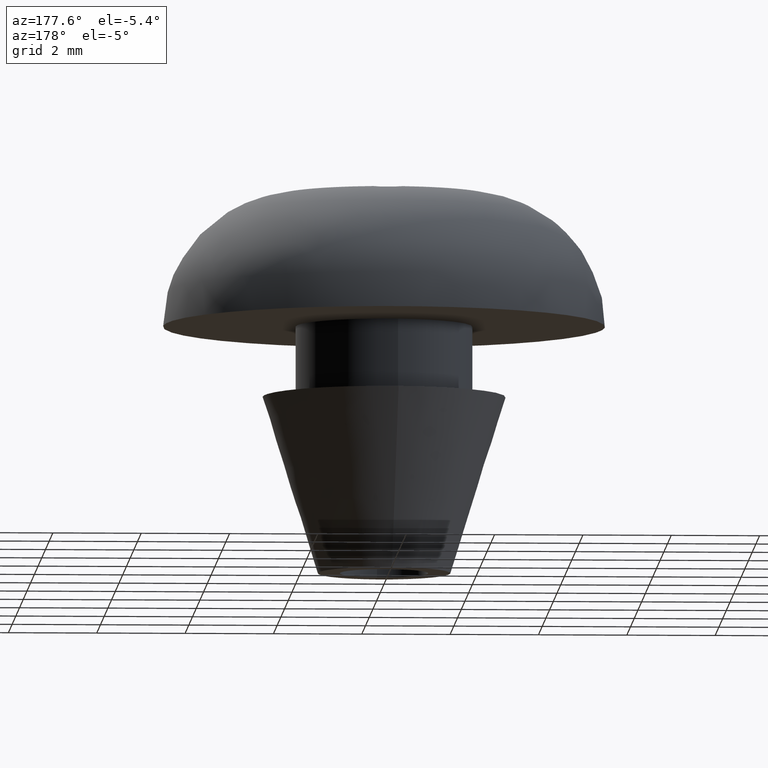
[diagram: clean part render]
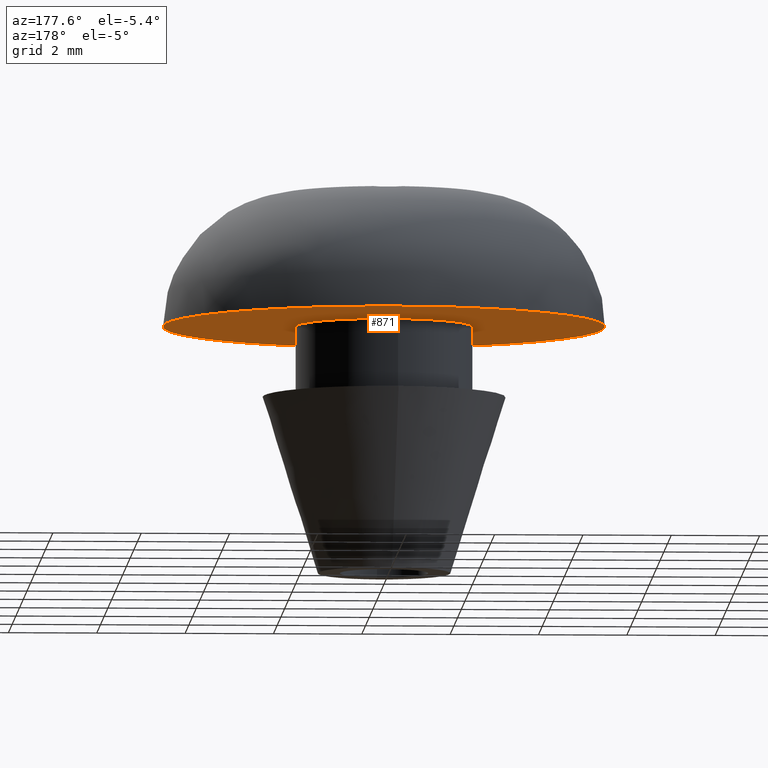
[diagram: same view with one face highlighted and labeled with its STEP entity id]
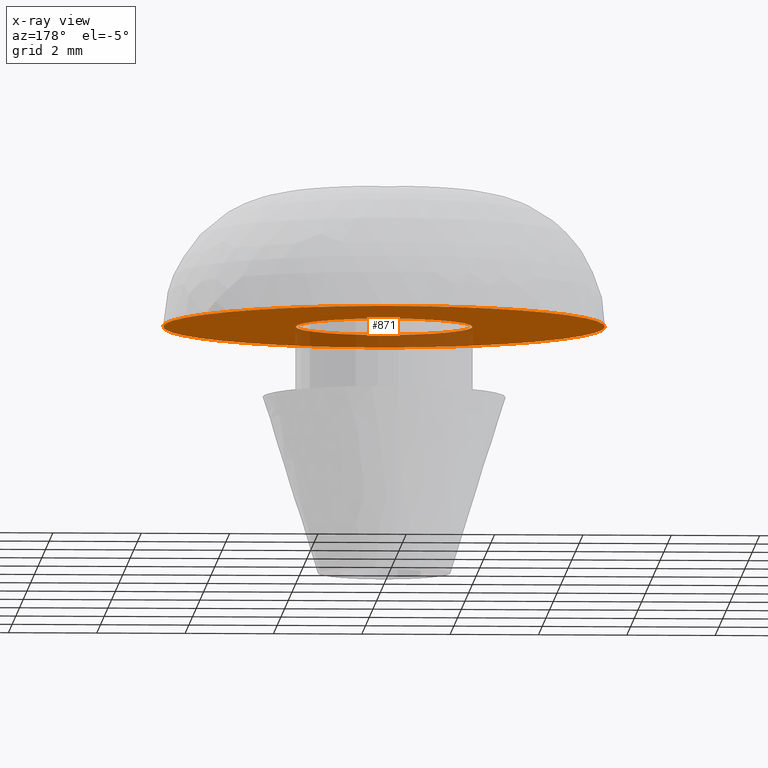
[diagram: x-ray of the same camera — body ghosted, the highlighted face saturated]
A machine part, auxiliary view. The second image highlights one B-rep face of the part: STEP entity #871.
The next image is the same camera in x-ray: the body ghosted, the highlighted face saturated — about 20% of this face is hidden behind the body in this view.
In plain terms, the highlighted face is a freeform B-spline surface patch.
Its self-contained STEP definition (entity closure, byte-faithful):
#252=CARTESIAN_POINT('',(-0.236064975085184,1.986019468063102,5.599999999999999));
#253=VERTEX_POINT('',#252);
#254=CARTESIAN_POINT('',(2.0,0.0,5.600000000000000));
#255=VERTEX_POINT('',#254);
#256=CARTESIAN_POINT('',(-0.236064975085184,1.986019468063103,5.599999999999999));
#257=CARTESIAN_POINT('',(-0.118446473719847,2.0,5.600000000000000));
#258=CARTESIAN_POINT('',(0.0,2.0,5.600000000000000));
#259=CARTESIAN_POINT('',(2.000000000000000,2.000000000000000,5.600000000000000));
#260=CARTESIAN_POINT('',(2.0,0.0,5.600000000000000));
#268=(BOUNDED_CURVE()B_SPLINE_CURVE(2,(#256,#257,#258,#259,#260),.UNSPECIFIED.,.F.,.U.)B_SPLINE_CURVE_WITH_KNOTS((3,2,3),(0.229562770862239,0.250000000000000,0.500000000000000),.UNSPECIFIED.)CURVE()GEOMETRIC_REPRESENTATION_ITEM()RATIONAL_B_SPLINE_CURVE((0.956027337000208,0.976056296696852,1.0,0.707106781186548,1.0))REPRESENTATION_ITEM(''));
#269=EDGE_CURVE('',#253,#255,#268,.T.);
#271=CARTESIAN_POINT('',(0.122096446461035,-1.996269635535537,5.599999999999997));
#272=VERTEX_POINT('',#271);
#273=CARTESIAN_POINT('',(2.0,0.0,5.600000000000000));
#274=CARTESIAN_POINT('',(2.0,-1.881413328461733,5.600000000000000));
#275=CARTESIAN_POINT('',(0.122096446461035,-1.996269635535536,5.599999999999998));
#283=(BOUNDED_CURVE()B_SPLINE_CURVE(2,(#273,#274,#275),.UNSPECIFIED.,.F.,.U.)B_SPLINE_CURVE_WITH_KNOTS((3,3),(0.500000000000000,0.739333071600552),.UNSPECIFIED.)CURVE()GEOMETRIC_REPRESENTATION_ITEM()RATIONAL_B_SPLINE_CURVE((1.0,0.719603865161616,0.976072276049575))REPRESENTATION_ITEM(''));
#284=EDGE_CURVE('',#255,#272,#283,.T.);
#355=CARTESIAN_POINT('',(-2.0,0.0,5.600000000000000));
#356=VERTEX_POINT('',#355);
#357=CARTESIAN_POINT('',(-2.0,0.0,5.600000000000000));
#358=CARTESIAN_POINT('',(-2.000000000000000,1.776352199238033,5.600000000000001));
#359=CARTESIAN_POINT('',(-0.236064975085184,1.986019468063103,5.599999999999999));
#367=(BOUNDED_CURVE()B_SPLINE_CURVE(2,(#357,#358,#359),.UNSPECIFIED.,.F.,.U.)B_SPLINE_CURVE_WITH_KNOTS((3,3),(0.0,0.229562770862239),.UNSPECIFIED.)CURVE()GEOMETRIC_REPRESENTATION_ITEM()RATIONAL_B_SPLINE_CURVE((1.0,0.731050484489696,0.956027337000208))REPRESENTATION_ITEM(''));
#368=EDGE_CURVE('',#356,#253,#367,.T.);
#402=CARTESIAN_POINT('',(0.122096446461035,-1.996269635535537,5.599999999999997));
#403=CARTESIAN_POINT('',(0.061104892214744,-2.000000000000000,5.600000000000000));
#404=CARTESIAN_POINT('',(0.0,-2.0,5.600000000000000));
#405=CARTESIAN_POINT('',(-2.000000000000000,-2.000000000000000,5.600000000000000));
#406=CARTESIAN_POINT('',(-2.0,0.0,5.600000000000000));
#414=(BOUNDED_CURVE()B_SPLINE_CURVE(2,(#402,#403,#404,#405,#406),.UNSPECIFIED.,.F.,.U.)B_SPLINE_CURVE_WITH_KNOTS((3,2,3),(0.739333071600552,0.750000000000000,1.0),.UNSPECIFIED.)CURVE()GEOMETRIC_REPRESENTATION_ITEM()RATIONAL_B_SPLINE_CURVE((0.976072276049576,0.987502916024932,1.0,0.707106781186548,1.0))REPRESENTATION_ITEM(''));
#415=EDGE_CURVE('',#272,#356,#414,.T.);
#654=CARTESIAN_POINT('',(-5.0,0.0,5.599999999999914));
#655=VERTEX_POINT('',#654);
#671=CARTESIAN_POINT('',(0.577318058448556,-4.966558552899535,5.599999966541873));
#672=VERTEX_POINT('',#671);
#673=CARTESIAN_POINT('',(0.577318058448556,-4.966558552899535,5.599999966541874));
#674=CARTESIAN_POINT('',(0.289627585783185,-4.999999999999999,5.600000000000000));
#675=CARTESIAN_POINT('',(0.0,-5.0,5.600000000000000));
#676=CARTESIAN_POINT('',(-5.000000000000001,-5.000000000000001,5.600000000000000));
#677=CARTESIAN_POINT('',(-5.0,0.0,5.599999999999914));
#685=(BOUNDED_CURVE()B_SPLINE_CURVE(2,(#673,#674,#675,#676,#677),.UNSPECIFIED.,.F.,.U.)B_SPLINE_CURVE_WITH_KNOTS((3,2,3),(0.730000105180036,0.750000000000000,1.0),.UNSPECIFIED.)CURVE()GEOMETRIC_REPRESENTATION_ITEM()RATIONAL_B_SPLINE_CURVE((0.956886325210574,0.976568665721001,1.0,0.707106781186548,1.0))REPRESENTATION_ITEM(''));
#686=EDGE_CURVE('',#672,#655,#685,.T.);
#765=CARTESIAN_POINT('',(5.0,0.0,5.600000000000000));
#766=VERTEX_POINT('',#765);
#767=CARTESIAN_POINT('',(5.0,0.0,5.600000000000000));
#768=CARTESIAN_POINT('',(5.000000000000001,-4.452461291298444,5.600000000000000));
#769=CARTESIAN_POINT('',(0.577318058448556,-4.966558552899535,5.599999966541874));
#777=(BOUNDED_CURVE()B_SPLINE_CURVE(2,(#767,#768,#769),.UNSPECIFIED.,.F.,.U.)B_SPLINE_CURVE_WITH_KNOTS((3,3),(0.500000000000000,0.730000105180036),.UNSPECIFIED.)CURVE()GEOMETRIC_REPRESENTATION_ITEM()RATIONAL_B_SPLINE_CURVE((1.0,0.730538115465546,0.956886325210574))REPRESENTATION_ITEM(''));
#778=EDGE_CURVE('',#766,#672,#777,.T.);
#780=CARTESIAN_POINT('',(-5.0,0.0,5.599999999999914));
#781=CARTESIAN_POINT('',(-5.000000000000001,5.000000000000001,5.600000000000000));
#782=CARTESIAN_POINT('',(0.0,5.0,5.600000000000000));
#783=CARTESIAN_POINT('',(5.000000000000001,5.000000000000001,5.600000000000000));
#784=CARTESIAN_POINT('',(5.0,0.0,5.600000000000000));
#792=(BOUNDED_CURVE()B_SPLINE_CURVE(2,(#780,#781,#782,#783,#784),.UNSPECIFIED.,.F.,.U.)B_SPLINE_CURVE_WITH_KNOTS((3,2,3),(0.0,0.250000000000000,0.500000000000000),.UNSPECIFIED.)CURVE()GEOMETRIC_REPRESENTATION_ITEM()RATIONAL_B_SPLINE_CURVE((1.0,0.707106781186548,1.0,0.707106781186548,1.0))REPRESENTATION_ITEM(''));
#793=EDGE_CURVE('',#655,#766,#792,.T.);
#855=CARTESIAN_POINT('',(5.499499980618060,-5.499471458234220,5.600000000000000));
#856=CARTESIAN_POINT('',(-5.499500248838961,-5.499471458234220,5.600000000000000));
#857=CARTESIAN_POINT('',(5.499499980618060,5.499498891862265,5.600000000000000));
#858=CARTESIAN_POINT('',(-5.499500248838961,5.499498891862264,5.600000000000000));
#859=B_SPLINE_SURFACE_WITH_KNOTS('',1,1,((#855,#857),(#856,#858)),.UNSPECIFIED.,.F.,.F.,.U.,(2,2),(2,2),(0.0,10.999000229457019),(0.0,10.998970350096490),.UNSPECIFIED.);
#860=ORIENTED_EDGE('',*,*,#793,.T.);
#861=ORIENTED_EDGE('',*,*,#778,.T.);
#862=ORIENTED_EDGE('',*,*,#686,.T.);
#863=EDGE_LOOP('',(#860,#861,#862));
#864=FACE_OUTER_BOUND('',#863,.T.);
#865=ORIENTED_EDGE('',*,*,#284,.F.);
#866=ORIENTED_EDGE('',*,*,#269,.F.);
#867=ORIENTED_EDGE('',*,*,#368,.F.);
#868=ORIENTED_EDGE('',*,*,#415,.F.);
#869=EDGE_LOOP('',(#865,#866,#867,#868));
#870=FACE_BOUND('',#869,.T.);
#871=ADVANCED_FACE('',(#864,#870),#859,.T.);